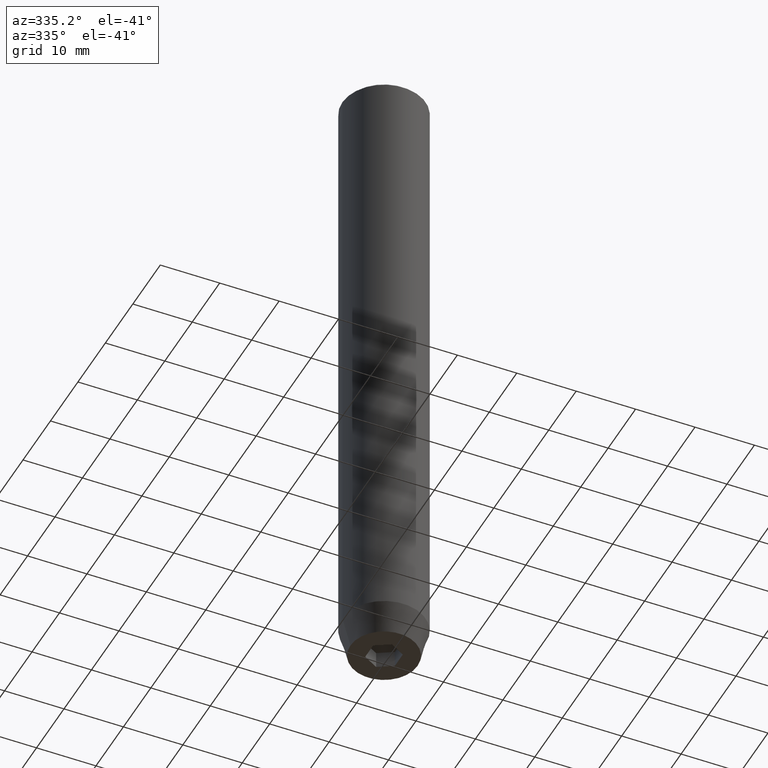
[diagram: clean part render]
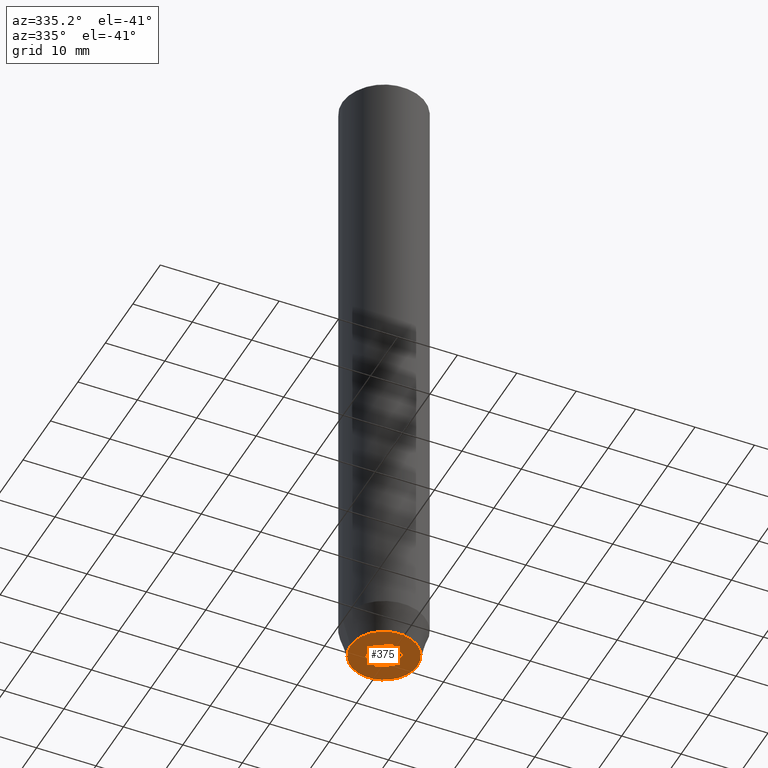
[diagram: same view with one face highlighted and labeled with its STEP entity id]
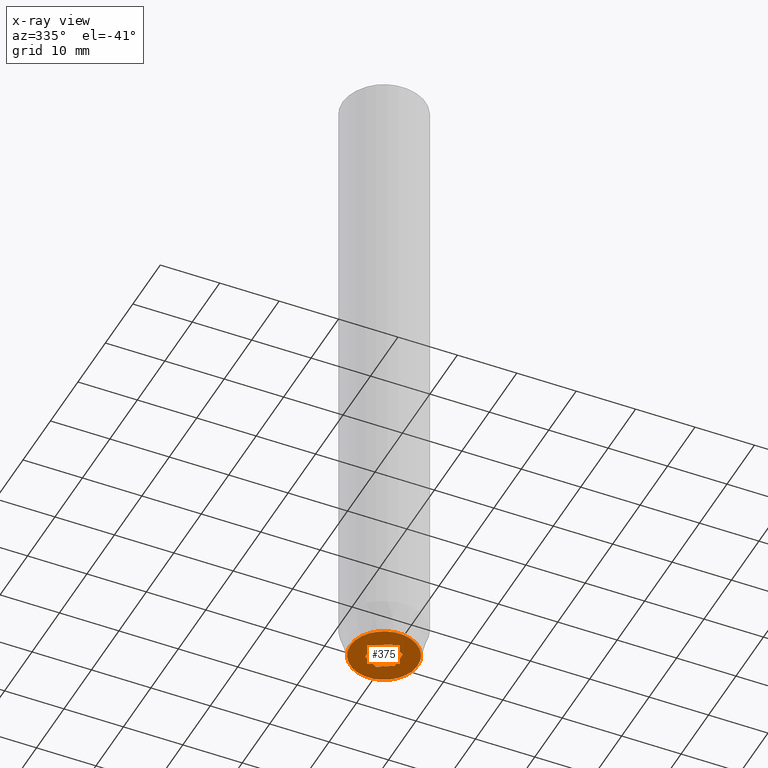
[diagram: x-ray of the same camera — body ghosted, the highlighted face saturated]
A machine part, auxiliary view. The second image highlights one B-rep face of the part: STEP entity #375.
The next image is the same camera in x-ray: the body ghosted, the highlighted face saturated — about 0% of this face is hidden behind the body in this view.
In plain terms, the highlighted planar face has unit normal (0, 0, -1).
Its self-contained STEP definition (entity closure, byte-faithful):
#20 = EDGE_CURVE ( 'NONE', #581, #71, #323, .T. ) ;
#27 = CARTESIAN_POINT ( 'NONE',  ( -1.250000000000000444, 2.165063509461097269, -110.0000000000000142 ) ) ;
#29 = DIRECTION ( 'NONE',  ( -0.8660254037844387076, 0.4999999999999998890, 0.000000000000000000 ) ) ;
#50 = FACE_OUTER_BOUND ( 'NONE', #104, .T. ) ;
#57 = CARTESIAN_POINT ( 'NONE',  ( 2.500000000000000000, 1.443375672974064328, -110.0000000000000142 ) ) ;
#58 = CARTESIAN_POINT ( 'NONE',  ( -2.500000000000000444, -1.443375672974064328, -110.0000000000000142 ) ) ;
#59 = EDGE_CURVE ( 'NONE', #153, #346, #473, .T. ) ;
#63 = VERTEX_POINT ( 'NONE', #58 ) ;
#71 = VERTEX_POINT ( 'NONE', #294 ) ;
#87 = DIRECTION ( 'NONE',  ( -0.8660254037844387076, -0.5000000000000001110, 0.000000000000000000 ) ) ;
#95 = CARTESIAN_POINT ( 'NONE',  ( 2.500000000000000000, 0.000000000000000000, -110.0000000000000142 ) ) ;
#104 = EDGE_LOOP ( 'NONE', ( #580, #314 ) ) ;
#106 = DIRECTION ( 'NONE',  ( -0.000000000000000000, -0.000000000000000000, 1.000000000000000000 ) ) ;
#122 = VECTOR ( 'NONE', #87, 999.9999999999998863 ) ;
#123 = EDGE_CURVE ( 'NONE', #496, #581, #329, .T. ) ;
#135 = DIRECTION ( 'NONE',  ( 0.000000000000000000, 0.000000000000000000, -1.000000000000000000 ) ) ;
#150 = ORIENTED_EDGE ( 'NONE', *, *, #557, .F. ) ;
#153 = VERTEX_POINT ( 'NONE', #158 ) ;
#158 = CARTESIAN_POINT ( 'NONE',  ( 5.660254037844381969, 0.000000000000000000, -110.0000000000000142 ) ) ;
#182 = DIRECTION ( 'NONE',  ( 1.000000000000000000, 0.000000000000000000, 0.000000000000000000 ) ) ;
#191 = PLANE ( 'NONE',  #238 ) ;
#198 = DIRECTION ( 'NONE',  ( 0.8660254037844385966, 0.5000000000000001110, 0.000000000000000000 ) ) ;
#199 = DIRECTION ( 'NONE',  ( 1.000000000000000000, 0.000000000000000000, 0.000000000000000000 ) ) ;
#210 = CARTESIAN_POINT ( 'NONE',  ( 2.500000000000000000, -1.443375672974064106, -110.0000000000000142 ) ) ;
#222 = EDGE_CURVE ( 'NONE', #63, #320, #490, .T. ) ;
#238 = AXIS2_PLACEMENT_3D ( 'NONE', #376, #135, #501 ) ;
#240 = ORIENTED_EDGE ( 'NONE', *, *, #123, .F. ) ;
#241 = CARTESIAN_POINT ( 'NONE',  ( -5.660254037844381969, 7.752169791919238770E-16, -110.0000000000000142 ) ) ;
#246 = LINE ( 'NONE', #429, #539 ) ;
#252 = VECTOR ( 'NONE', #198, 1000.000000000000000 ) ;
#283 = DIRECTION ( 'NONE',  ( 0.000000000000000000, -1.000000000000000000, 0.000000000000000000 ) ) ;
#288 = CIRCLE ( 'NONE', #451, 5.660254037844381969 ) ;
#294 = CARTESIAN_POINT ( 'NONE',  ( 0.000000000000000000, -2.886751345948128211, -110.0000000000000142 ) ) ;
#314 = ORIENTED_EDGE ( 'NONE', *, *, #351, .F. ) ;
#320 = VERTEX_POINT ( 'NONE', #379 ) ;
#323 = LINE ( 'NONE', #499, #122 ) ;
#329 = LINE ( 'NONE', #95, #372 ) ;
#335 = CARTESIAN_POINT ( 'NONE',  ( 0.000000000000000000, 0.000000000000000000, -110.0000000000000142 ) ) ;
#346 = VERTEX_POINT ( 'NONE', #241 ) ;
#351 = EDGE_CURVE ( 'NONE', #346, #153, #288, .T. ) ;
#364 = ORIENTED_EDGE ( 'NONE', *, *, #20, .F. ) ;
#367 = EDGE_LOOP ( 'NONE', ( #431, #534, #388, #364, #240, #150 ) ) ;
#372 = VECTOR ( 'NONE', #283, 1000.000000000000000 ) ;
#375 = ADVANCED_FACE ( 'NONE', ( #511, #50 ), #191, .T. ) ;
#376 = CARTESIAN_POINT ( 'NONE',  ( 0.000000000000000000, 5.660254037844381969, -110.0000000000000142 ) ) ;
#379 = CARTESIAN_POINT ( 'NONE',  ( -2.500000000000000444, 1.443375672974064772, -110.0000000000000142 ) ) ;
#388 = ORIENTED_EDGE ( 'NONE', *, *, #529, .F. ) ;
#389 = DIRECTION ( 'NONE',  ( 0.8660254037844385966, -0.5000000000000001110, 0.000000000000000000 ) ) ;
#397 = LINE ( 'NONE', #528, #438 ) ;
#400 = CARTESIAN_POINT ( 'NONE',  ( -2.500000000000000444, 0.000000000000000000, -110.0000000000000142 ) ) ;
#405 = VECTOR ( 'NONE', #485, 1000.000000000000000 ) ;
#420 = DIRECTION ( 'NONE',  ( -0.000000000000000000, -0.000000000000000000, 1.000000000000000000 ) ) ;
#429 = CARTESIAN_POINT ( 'NONE',  ( 1.250000000000000222, 2.165063509461096825, -110.0000000000000142 ) ) ;
#431 = ORIENTED_EDGE ( 'NONE', *, *, #579, .F. ) ;
#432 = LINE ( 'NONE', #27, #252 ) ;
#438 = VECTOR ( 'NONE', #29, 1000.000000000000114 ) ;
#451 = AXIS2_PLACEMENT_3D ( 'NONE', #335, #420, #182 ) ;
#452 = AXIS2_PLACEMENT_3D ( 'NONE', #466, #106, #199 ) ;
#466 = CARTESIAN_POINT ( 'NONE',  ( 0.000000000000000000, 0.000000000000000000, -110.0000000000000142 ) ) ;
#468 = CARTESIAN_POINT ( 'NONE',  ( 0.000000000000000000, 2.886751345948128655, -110.0000000000000142 ) ) ;
#473 = CIRCLE ( 'NONE', #452, 5.660254037844381969 ) ;
#485 = DIRECTION ( 'NONE',  ( 0.000000000000000000, 1.000000000000000000, 0.000000000000000000 ) ) ;
#490 = LINE ( 'NONE', #400, #405 ) ;
#496 = VERTEX_POINT ( 'NONE', #57 ) ;
#499 = CARTESIAN_POINT ( 'NONE',  ( 1.249999999999999778, -2.165063509461096380, -110.0000000000000142 ) ) ;
#501 = DIRECTION ( 'NONE',  ( -1.000000000000000000, 0.000000000000000000, -0.000000000000000000 ) ) ;
#511 = FACE_BOUND ( 'NONE', #367, .T. ) ;
#528 = CARTESIAN_POINT ( 'NONE',  ( -1.249999999999999556, -2.165063509461096825, -110.0000000000000142 ) ) ;
#529 = EDGE_CURVE ( 'NONE', #71, #63, #397, .T. ) ;
#534 = ORIENTED_EDGE ( 'NONE', *, *, #222, .F. ) ;
#539 = VECTOR ( 'NONE', #389, 1000.000000000000000 ) ;
#557 = EDGE_CURVE ( 'NONE', #560, #496, #246, .T. ) ;
#560 = VERTEX_POINT ( 'NONE', #468 ) ;
#579 = EDGE_CURVE ( 'NONE', #320, #560, #432, .T. ) ;
#580 = ORIENTED_EDGE ( 'NONE', *, *, #59, .F. ) ;
#581 = VERTEX_POINT ( 'NONE', #210 ) ;